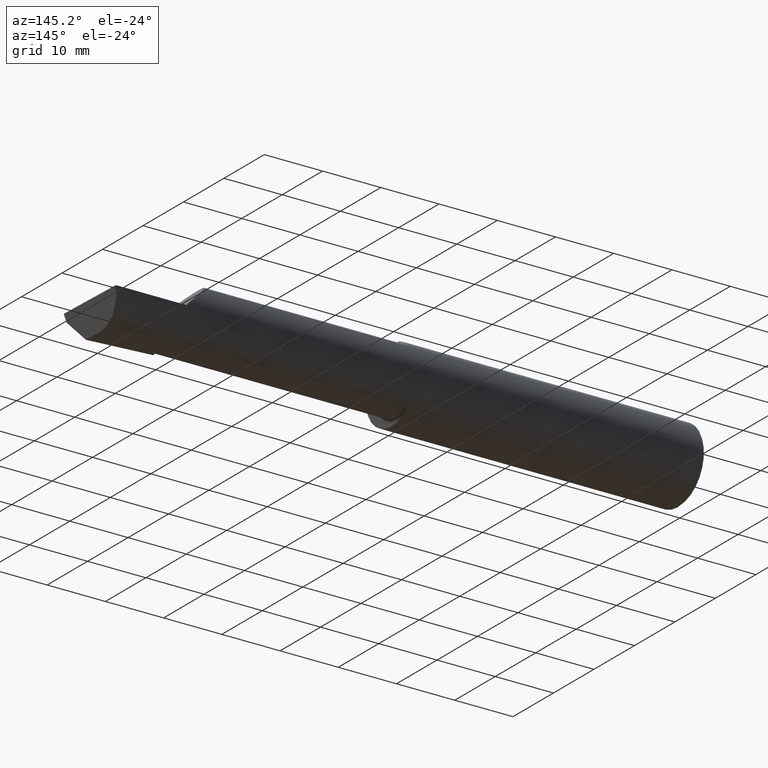
[diagram: clean part render]
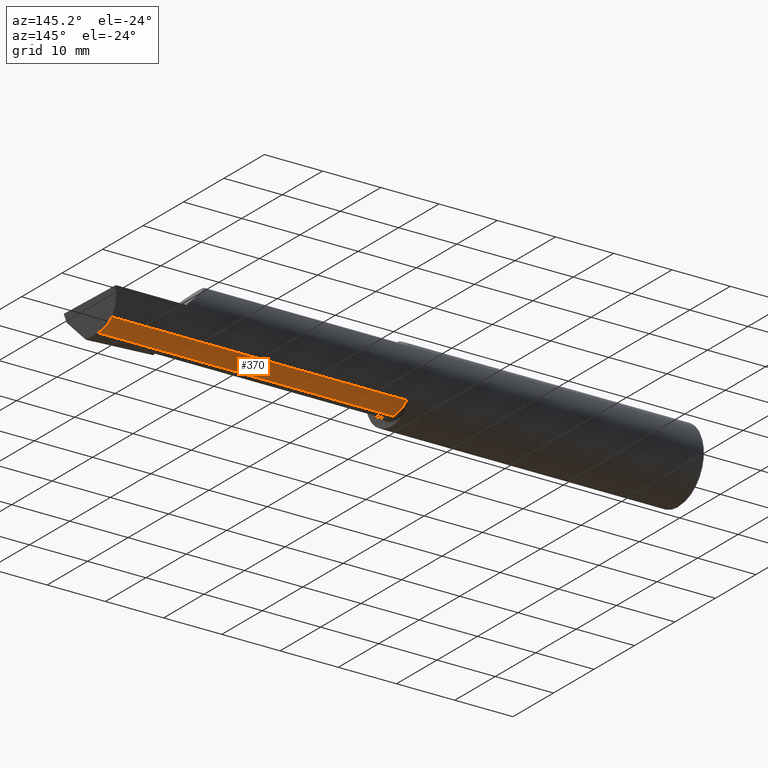
[diagram: same view with one face highlighted and labeled with its STEP entity id]
A machine part, auxiliary view. The second image highlights one B-rep face of the part: STEP entity #370.
In plain terms, the highlighted cylindrical surface (partial cylindrical patch) has radius 5.414 mm, axis along (-1, -0, -0).
Its self-contained STEP definition (entity closure, byte-faithful):
#1 = CIRCLE ( 'NONE', #27, 0.2131500000000002282 ) ;
#21 = ORIENTED_EDGE ( 'NONE', *, *, #417, .F. ) ;
#27 = AXIS2_PLACEMENT_3D ( 'NONE', #502, #608, #83 ) ;
#33 = DIRECTION ( 'NONE',  ( -1.000000000000000000, -0.000000000000000000, -0.000000000000000000 ) ) ;
#48 = EDGE_CURVE ( 'NONE', #313, #345, #747, .T. ) ;
#56 = CARTESIAN_POINT ( 'NONE',  ( 3.965646124279056828, 0.1021668565906567044, -0.2131500000000000339 ) ) ;
#82 = ORIENTED_EDGE ( 'NONE', *, *, #677, .T. ) ;
#83 = DIRECTION ( 'NONE',  ( 0.000000000000000000, 0.000000000000000000, 1.000000000000000000 ) ) ;
#121 = EDGE_CURVE ( 'NONE', #313, #188, #640, .T. ) ;
#167 = CARTESIAN_POINT ( 'NONE',  ( 2.760000000000000231, 0.1868028301886789366, -0.1659208399614092722 ) ) ;
#168 = CARTESIAN_POINT ( 'NONE',  ( 4.000000000000000000, 0.05299999999999996381, -0.2131499999999999784 ) ) ;
#175 = CARTESIAN_POINT ( 'NONE',  ( 3.968970726278978400, 0.1868028301886789366, -0.1659208399614092722 ) ) ;
#188 = VERTEX_POINT ( 'NONE', #710 ) ;
#200 = CARTESIAN_POINT ( 'NONE',  ( 0.000000000000000000, 0.05300000000000001238, -0.2131500000000000894 ) ) ;
#220 = LINE ( 'NONE', #167, #393 ) ;
#269 = DIRECTION ( 'NONE',  ( -1.000000000000000000, -0.000000000000000000, -0.000000000000000000 ) ) ;
#313 = VERTEX_POINT ( 'NONE', #675 ) ;
#323 = DIRECTION ( 'NONE',  ( -1.000000000000000000, -0.000000000000000000, -0.000000000000000000 ) ) ;
#327 = DIRECTION ( 'NONE',  ( 0.000000000000000000, 0.000000000000000000, 1.000000000000000000 ) ) ;
#345 = VERTEX_POINT ( 'NONE', #549 ) ;
#370 = ADVANCED_FACE ( 'NONE', ( #737 ), #741, .T. ) ;
#378 = CARTESIAN_POINT ( 'NONE',  ( 1.975000000000000089, 0.05300000000000001238, -0.2131500000000002282 ) ) ;
#393 = VECTOR ( 'NONE', #33, 39.37007874015748143 ) ;
#400 = CARTESIAN_POINT ( 'NONE',  ( 1.975000000000000089, 0.1868028301886779097, -0.1659208399614102436 ) ) ;
#417 = EDGE_CURVE ( 'NONE', #188, #472, #220, .T. ) ;
#428 = AXIS2_PLACEMENT_3D ( 'NONE', #689, #323, #327 ) ;
#441 = ORIENTED_EDGE ( 'NONE', *, *, #48, .T. ) ;
#472 = VERTEX_POINT ( 'NONE', #400 ) ;
#475 = ORIENTED_EDGE ( 'NONE', *, *, #715, .F. ) ;
#502 = CARTESIAN_POINT ( 'NONE',  ( 1.975000000000000089, 0.05299999999999998462, 0.000000000000000000 ) ) ;
#509 = VECTOR ( 'NONE', #269, 39.37007874015748143 ) ;
#530 = ORIENTED_EDGE ( 'NONE', *, *, #121, .F. ) ;
#549 = CARTESIAN_POINT ( 'NONE',  ( 3.544999999999999929, 0.05299999999999996381, -0.2131499999999999784 ) ) ;
#552 = LINE ( 'NONE', #200, #509 ) ;
#556 = VECTOR ( 'NONE', #629, 39.37007874015748143 ) ;
#580 = CARTESIAN_POINT ( 'NONE',  ( 3.966963271960172399, 0.05299999999999996381, -0.2131499999999999784 ) ) ;
#605 = EDGE_LOOP ( 'NONE', ( #441, #82, #475, #21, #530 ) ) ;
#608 = DIRECTION ( 'NONE',  ( -1.000000000000000000, -0.000000000000000000, -0.000000000000000000 ) ) ;
#629 = DIRECTION ( 'NONE',  ( -1.000000000000000000, -0.000000000000000000, -0.000000000000000000 ) ) ;
#640 =( BOUNDED_CURVE ( )  B_SPLINE_CURVE ( 3, ( #580, #56, #654, #175 ),
 .UNSPECIFIED., .F., .T. ) 
 B_SPLINE_CURVE_WITH_KNOTS ( ( 4, 4 ),
 ( 6.060671081087565248, 6.739317872789800212 ),
 .UNSPECIFIED. ) 
 CURVE ( )  GEOMETRIC_REPRESENTATION_ITEM ( )  RATIONAL_B_SPLINE_CURVE ( ( 1.000000000000000000, 0.9619867256453027426, 0.9619867256453027426, 1.000000000000000000 ) ) 
 REPRESENTATION_ITEM ( '' )  );
#654 = CARTESIAN_POINT ( 'NONE',  ( 3.966341717494393126, 0.1485302233682054274, -0.1967848538638760081 ) ) ;
#675 = CARTESIAN_POINT ( 'NONE',  ( 3.966963271960172399, 0.05299999999999996381, -0.2131499999999999784 ) ) ;
#677 = EDGE_CURVE ( 'NONE', #345, #687, #552, .T. ) ;
#687 = VERTEX_POINT ( 'NONE', #378 ) ;
#689 = CARTESIAN_POINT ( 'NONE',  ( 0.000000000000000000, 0.05299999999999998462, 0.000000000000000000 ) ) ;
#710 = CARTESIAN_POINT ( 'NONE',  ( 3.968970726278978400, 0.1868028301886789366, -0.1659208399614092722 ) ) ;
#715 = EDGE_CURVE ( 'NONE', #472, #687, #1, .T. ) ;
#737 = FACE_OUTER_BOUND ( 'NONE', #605, .T. ) ;
#741 = CYLINDRICAL_SURFACE ( 'NONE', #428, 0.2131500000000000894 ) ;
#747 = LINE ( 'NONE', #168, #556 ) ;